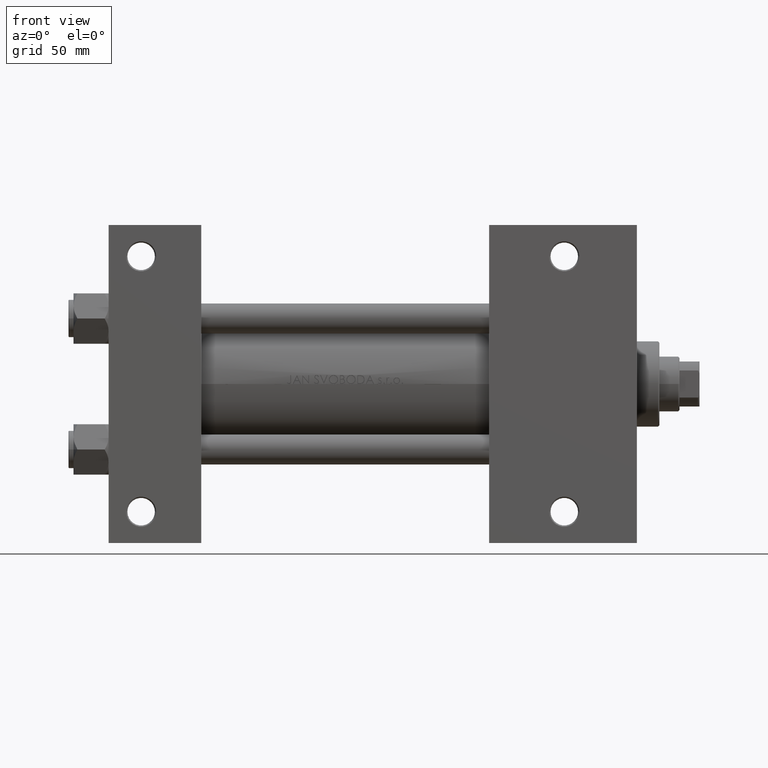
[diagram: clean part render]
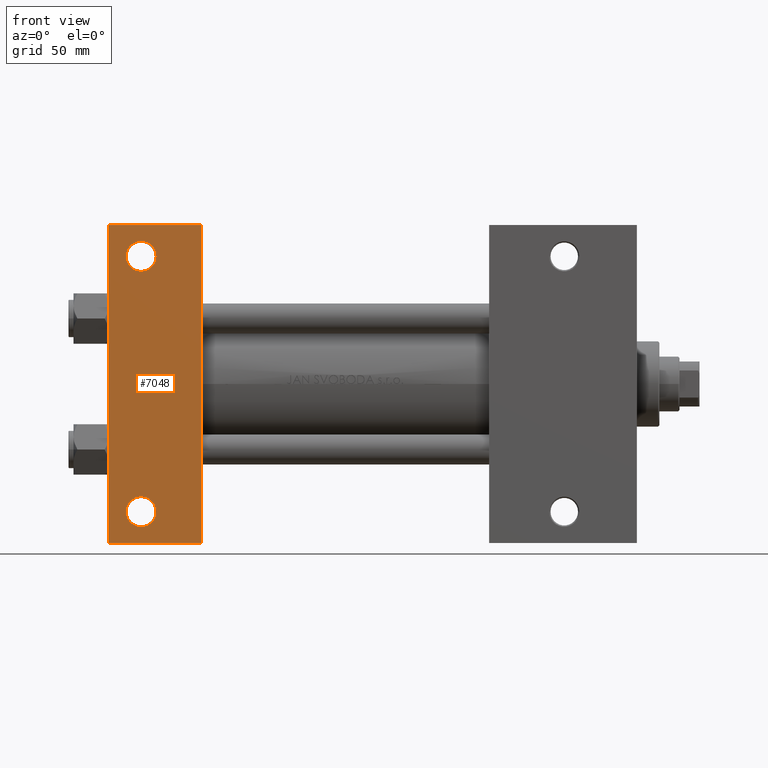
[diagram: same view with one face highlighted and labeled with its STEP entity id]
A machine part, front view. The second image highlights one B-rep face of the part: STEP entity #7048.
In plain terms, the highlighted planar face has unit normal (0, -1, -0).
Its self-contained STEP definition (entity closure, byte-faithful):
#30 = AXIS2_PLACEMENT_3D ( 'NONE', #31987, #10271, #28973 ) ;
#1262 = CARTESIAN_POINT ( 'NONE',  ( 12.99999999999999822, -51.00000000000002132, -37.50000000000000711 ) ) ;
#2376 = ORIENTED_EDGE ( 'NONE', *, *, #40940, .T. ) ;
#2652 = FACE_OUTER_BOUND ( 'NONE', #4322, .T. ) ;
#2835 = CARTESIAN_POINT ( 'NONE',  ( 18.99949999999993366, 50.99999999999998579, -37.50000000000000000 ) ) ;
#2901 = FACE_BOUND ( 'NONE', #45378, .T. ) ;
#3003 = VECTOR ( 'NONE', #31562, 1000.000000000000000 ) ;
#3639 = ORIENTED_EDGE ( 'NONE', *, *, #31065, .F. ) ;
#3871 = VERTEX_POINT ( 'NONE', #38534 ) ;
#4302 = AXIS2_PLACEMENT_3D ( 'NONE', #33348, #48767, #48037 ) ;
#4322 = EDGE_LOOP ( 'NONE', ( #3639, #30975, #20734, #39469 ) ) ;
#5047 = AXIS2_PLACEMENT_3D ( 'NONE', #43630, #39177, #5054 ) ;
#5054 = DIRECTION ( 'NONE',  ( 0.000000000000000000, 1.000000000000000000, 0.000000000000000000 ) ) ;
#5611 = EDGE_CURVE ( 'NONE', #17243, #49207, #12460, .T. ) ;
#7048 = ADVANCED_FACE ( 'NONE', ( #33053, #2901, #2652 ), #26322, .T. ) ;
#7521 = EDGE_CURVE ( 'NONE', #49207, #11660, #31027, .T. ) ;
#8248 = CARTESIAN_POINT ( 'NONE',  ( 1.595073532467135441E-14, 63.50000000000000000, -37.50000000000002132 ) ) ;
#10271 = DIRECTION ( 'NONE',  ( -0.000000000000000000, -9.251858538542972814E-17, 1.000000000000000000 ) ) ;
#11660 = VERTEX_POINT ( 'NONE', #35093 ) ;
#11803 = CIRCLE ( 'NONE', #39659, 5.999499999999935440 ) ;
#12460 = LINE ( 'NONE', #8248, #33066 ) ;
#13501 = EDGE_CURVE ( 'NONE', #11660, #23513, #46989, .T. ) ;
#13682 = VERTEX_POINT ( 'NONE', #39414 ) ;
#14044 = AXIS2_PLACEMENT_3D ( 'NONE', #33292, #41496, #29307 ) ;
#14990 = CARTESIAN_POINT ( 'NONE',  ( 1.595073532467135441E-14, 63.50000000000000000, -37.50000000000002132 ) ) ;
#15996 = VECTOR ( 'NONE', #34386, 1000.000000000000000 ) ;
#17243 = VERTEX_POINT ( 'NONE', #14990 ) ;
#20178 = CIRCLE ( 'NONE', #5047, 5.999499999999935440 ) ;
#20539 = EDGE_CURVE ( 'NONE', #13682, #39136, #22344, .T. ) ;
#20734 = ORIENTED_EDGE ( 'NONE', *, *, #7521, .T. ) ;
#21811 = CARTESIAN_POINT ( 'NONE',  ( 37.00000000000001421, 63.50000000000000000, -37.50000000000002132 ) ) ;
#22344 = CIRCLE ( 'NONE', #30, 5.999499999999935440 ) ;
#23445 = LINE ( 'NONE', #26920, #15996 ) ;
#23446 = ORIENTED_EDGE ( 'NONE', *, *, #20539, .T. ) ;
#23513 = VERTEX_POINT ( 'NONE', #36998 ) ;
#24465 = VERTEX_POINT ( 'NONE', #2835 ) ;
#25003 = EDGE_LOOP ( 'NONE', ( #2376, #34475 ) ) ;
#25048 = EDGE_CURVE ( 'NONE', #39136, #13682, #11803, .T. ) ;
#26322 = PLANE ( 'NONE',  #14044 ) ;
#26920 = CARTESIAN_POINT ( 'NONE',  ( 0.000000000000000000, 37.49999999999999289, -37.50000000000000000 ) ) ;
#28274 = DIRECTION ( 'NONE',  ( 0.000000000000000000, -1.000000000000000000, -9.251858538542972814E-17 ) ) ;
#28793 = CARTESIAN_POINT ( 'NONE',  ( 3.977209754999747208E-16, -63.50000000000000000, -37.49999999999999289 ) ) ;
#28973 = DIRECTION ( 'NONE',  ( 0.000000000000000000, 1.000000000000000000, 0.000000000000000000 ) ) ;
#29307 = DIRECTION ( 'NONE',  ( 0.000000000000000000, 1.000000000000000000, 9.251858538542972814E-17 ) ) ;
#30975 = ORIENTED_EDGE ( 'NONE', *, *, #5611, .T. ) ;
#31027 = LINE ( 'NONE', #35252, #37106 ) ;
#31065 = EDGE_CURVE ( 'NONE', #17243, #23513, #23445, .T. ) ;
#31562 = DIRECTION ( 'NONE',  ( -1.000000000000000000, -0.000000000000000000, -0.000000000000000000 ) ) ;
#31987 = CARTESIAN_POINT ( 'NONE',  ( 12.99999999999999822, -51.00000000000002132, -37.50000000000000711 ) ) ;
#32248 = ORIENTED_EDGE ( 'NONE', *, *, #25048, .T. ) ;
#32991 = CARTESIAN_POINT ( 'NONE',  ( 18.99949999999993366, -51.00000000000002132, -37.50000000000000711 ) ) ;
#33053 = FACE_BOUND ( 'NONE', #25003, .T. ) ;
#33066 = VECTOR ( 'NONE', #46330, 1000.000000000000000 ) ;
#33292 = CARTESIAN_POINT ( 'NONE',  ( 37.00000000000000000, 37.49999999999999289, -37.50000000000000000 ) ) ;
#33348 = CARTESIAN_POINT ( 'NONE',  ( 12.99999999999999822, 50.99999999999998579, -37.50000000000000000 ) ) ;
#33685 = CIRCLE ( 'NONE', #4302, 5.999499999999935440 ) ;
#34386 = DIRECTION ( 'NONE',  ( 0.000000000000000000, -1.000000000000000000, -9.251858538542972814E-17 ) ) ;
#34475 = ORIENTED_EDGE ( 'NONE', *, *, #42095, .T. ) ;
#35093 = CARTESIAN_POINT ( 'NONE',  ( 37.00000000000000000, -63.50000000000000000, -37.49999999999999289 ) ) ;
#35252 = CARTESIAN_POINT ( 'NONE',  ( 37.00000000000000000, 37.49999999999999289, -37.50000000000000000 ) ) ;
#36998 = CARTESIAN_POINT ( 'NONE',  ( 3.977209754999747208E-16, -63.50000000000000000, -37.49999999999999289 ) ) ;
#37106 = VECTOR ( 'NONE', #28274, 1000.000000000000000 ) ;
#38534 = CARTESIAN_POINT ( 'NONE',  ( 7.000500000000061895, 50.99999999999998579, -37.50000000000000000 ) ) ;
#39136 = VERTEX_POINT ( 'NONE', #32991 ) ;
#39177 = DIRECTION ( 'NONE',  ( -0.000000000000000000, -9.251858538542972814E-17, 1.000000000000000000 ) ) ;
#39414 = CARTESIAN_POINT ( 'NONE',  ( 7.000500000000061895, -51.00000000000002132, -37.50000000000000711 ) ) ;
#39469 = ORIENTED_EDGE ( 'NONE', *, *, #13501, .T. ) ;
#39659 = AXIS2_PLACEMENT_3D ( 'NONE', #1262, #46840, #42617 ) ;
#40940 = EDGE_CURVE ( 'NONE', #3871, #24465, #20178, .T. ) ;
#41496 = DIRECTION ( 'NONE',  ( 0.000000000000000000, 9.251858538542972814E-17, -1.000000000000000000 ) ) ;
#42095 = EDGE_CURVE ( 'NONE', #24465, #3871, #33685, .T. ) ;
#42617 = DIRECTION ( 'NONE',  ( 0.000000000000000000, 1.000000000000000000, 0.000000000000000000 ) ) ;
#43630 = CARTESIAN_POINT ( 'NONE',  ( 12.99999999999999822, 50.99999999999998579, -37.50000000000000000 ) ) ;
#45378 = EDGE_LOOP ( 'NONE', ( #23446, #32248 ) ) ;
#46330 = DIRECTION ( 'NONE',  ( 1.000000000000000000, 0.000000000000000000, 0.000000000000000000 ) ) ;
#46840 = DIRECTION ( 'NONE',  ( -0.000000000000000000, -9.251858538542972814E-17, 1.000000000000000000 ) ) ;
#46989 = LINE ( 'NONE', #28793, #3003 ) ;
#48037 = DIRECTION ( 'NONE',  ( 0.000000000000000000, 1.000000000000000000, 0.000000000000000000 ) ) ;
#48767 = DIRECTION ( 'NONE',  ( -0.000000000000000000, -9.251858538542972814E-17, 1.000000000000000000 ) ) ;
#49207 = VERTEX_POINT ( 'NONE', #21811 ) ;